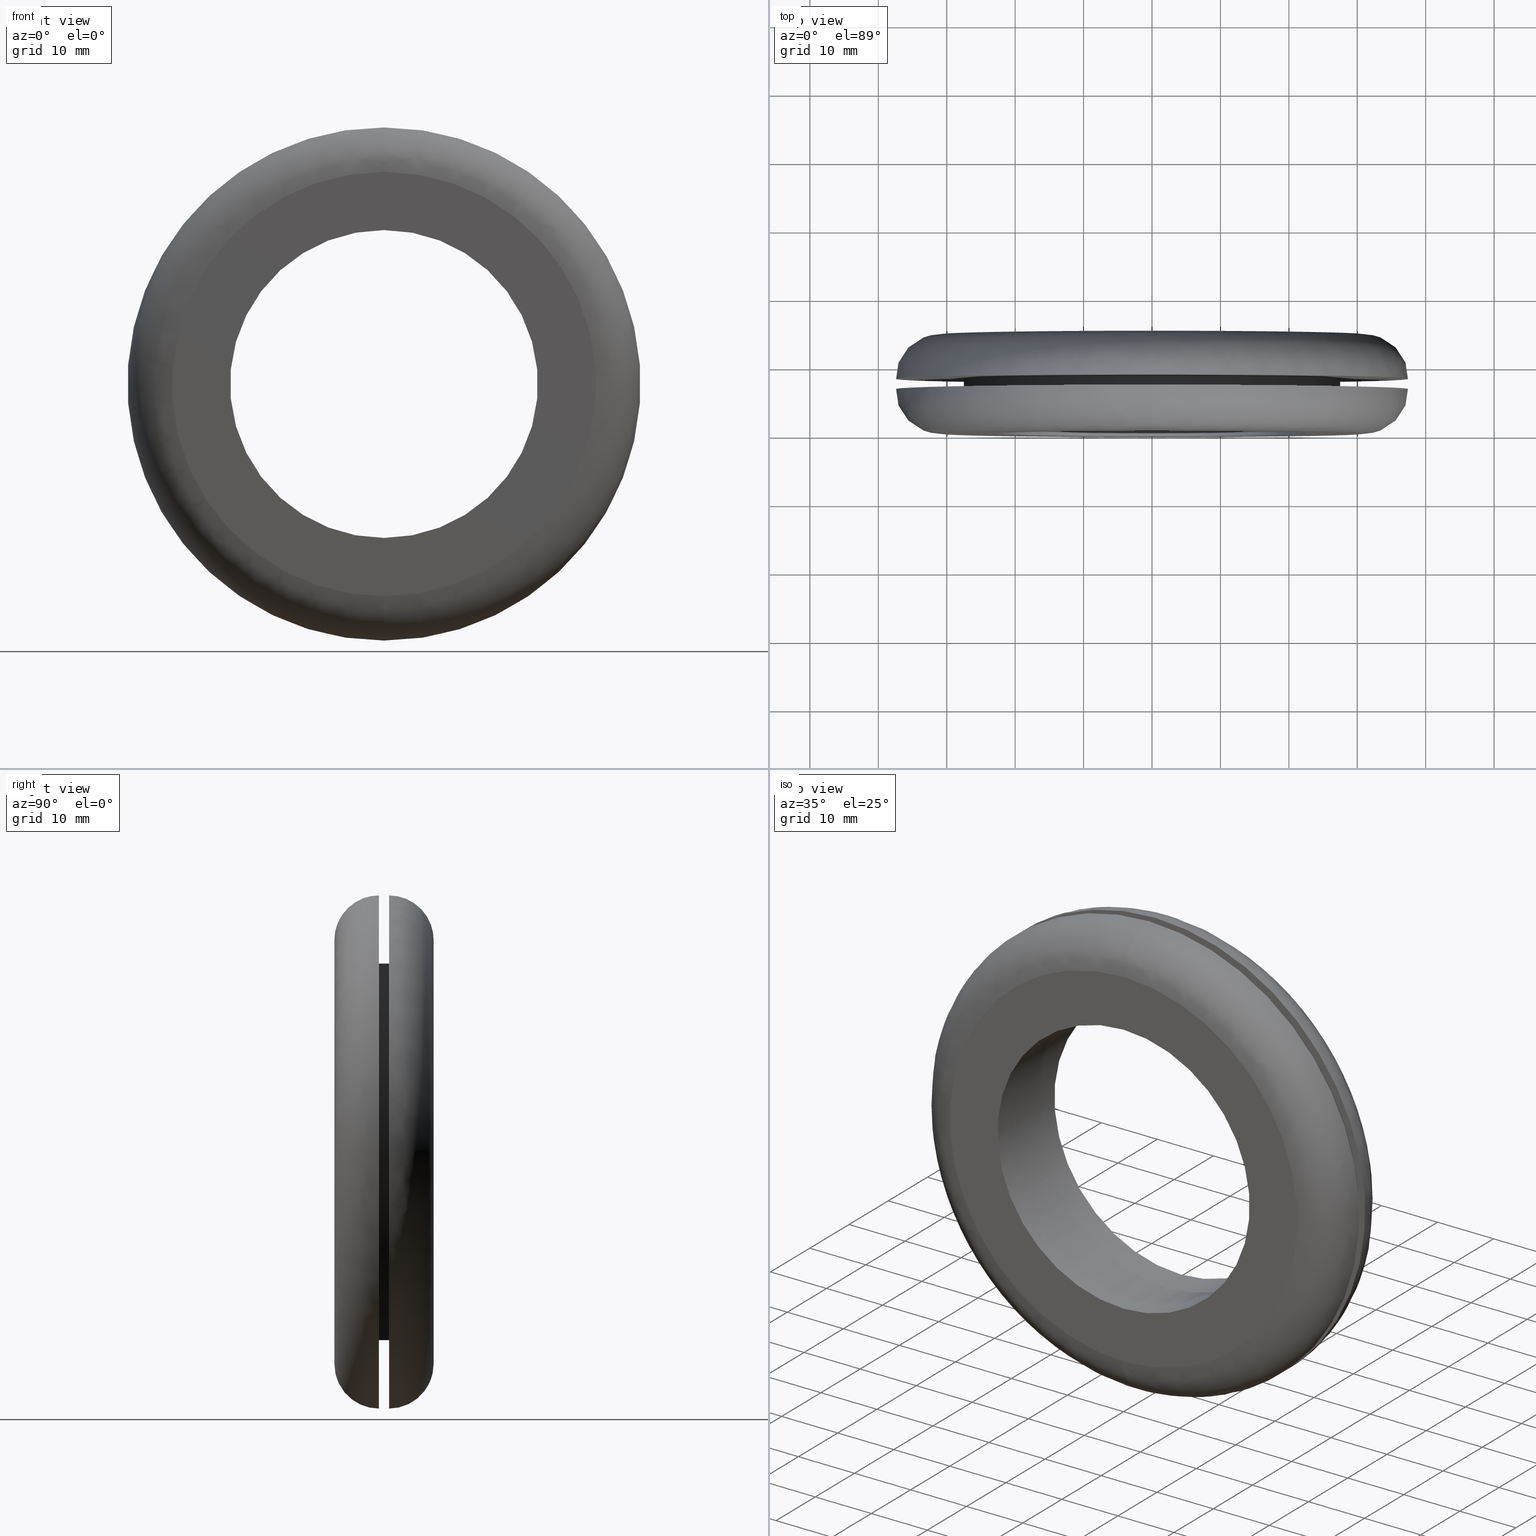
[diagram: canonical four-view strip — front | top / right | iso, engineering-drawing reading convention]
A machine part, canonical four-view strip (front | top / right | iso — engineering-drawing reading convention). The complete STEP part file that produces these views, byte-faithful:
ISO-10303-21;
HEADER;

FILE_DESCRIPTION( (''), '2;1');
FILE_NAME ('PC50.12492.TM_B_45_1_5_CRUL_6526.stp','2019-12-19T13:53:18',(''),(''),'spGate 15.6.1','','');

FILE_SCHEMA (('AUTOMOTIVE_DESIGN'));
ENDSEC;

DATA;
#10=(GEOMETRIC_REPRESENTATION_CONTEXT(3) GLOBAL_UNCERTAINTY_ASSIGNED_CONTEXT((#11)) GLOBAL_UNIT_ASSIGNED_CONTEXT((#12,#13,#14)) REPRESENTATION_CONTEXT('ID1','3D'));
#11=UNCERTAINTY_MEASURE_WITH_UNIT(LENGTH_MEASURE(0.01),#15,'DISTANCE_ACCURACY_VALUE','Maximum model space distance between geometric entities at asserted connectivities');
#12=(NAMED_UNIT(*) SI_UNIT($,.STERADIAN.) SOLID_ANGLE_UNIT());
#13=(CONVERSION_BASED_UNIT('DEGREE',#16) NAMED_UNIT(#17) PLANE_ANGLE_UNIT());
#14=(LENGTH_UNIT() NAMED_UNIT(*) SI_UNIT(.MILLI.,.METRE.));
#15=(LENGTH_UNIT() NAMED_UNIT(*) SI_UNIT(.MILLI.,.METRE.));
#16=PLANE_ANGLE_MEASURE_WITH_UNIT(PLANE_ANGLE_MEASURE(0.01745329252),#18);
#17=DIMENSIONAL_EXPONENTS(0.0,0.0,0.0,0.0,0.0,0.0,0.0);
#18=(NAMED_UNIT(*) PLANE_ANGLE_UNIT() SI_UNIT($,.RADIAN.));
#19=MANIFOLD_SOLID_BREP('TM_B_45_1_5',#31);
#20=ADVANCED_BREP_SHAPE_REPRESENTATION('',(#19),#10);
#21=APPLICATION_CONTEXT('');
#22=APPLICATION_PROTOCOL_DEFINITION('International Standard','automotive_design',1999,#21);
#23=PRODUCT_DEFINITION_CONTEXT('',#21,'design');
#24=PRODUCT_CONTEXT('',#21,'mechanical');
#25=PRODUCT('','','',(#24));
#26=PRODUCT_DEFINITION_FORMATION_WITH_SPECIFIED_SOURCE('','',#25,.NOT_KNOWN.);
#27=PRODUCT_RELATED_PRODUCT_CATEGORY('tool','tool',(#25));
#28=PRODUCT_DEFINITION('','',#26,#23);
#29=PRODUCT_DEFINITION_SHAPE('','',#28);
#30=SHAPE_DEFINITION_REPRESENTATION(#29,#20);
#31=CLOSED_SHELL('',(#40,#41,#42,#43,#44,#45,#46,#47,#48,#49,#50,#51));
#32=COLOUR_RGB('',0.00000000000E+000,0.00000000000E+000,0.00000000000E+000);
#33=FILL_AREA_STYLE_COLOUR('',#32);
#34=FILL_AREA_STYLE('',(#33));
#35=SURFACE_STYLE_FILL_AREA(#34);
#36=SURFACE_SIDE_STYLE('',(#35));
#37=SURFACE_STYLE_USAGE(.BOTH.,#36);
#38=PRESENTATION_STYLE_ASSIGNMENT((#37));
#39=STYLED_ITEM('',(#38),#19);
#40=ADVANCED_FACE('',(#53,#54),#52,.T.);
#41=ADVANCED_FACE('',(#64,#65),#63,.T.);
#42=ADVANCED_FACE('',(#75,#76),#74,.T.);
#43=ADVANCED_FACE('',(#86,#87),#85,.F.);
#44=ADVANCED_FACE('',(#97),#96,.T.);
#45=ADVANCED_FACE('',(#107),#106,.T.);
#46=ADVANCED_FACE('',(#117),#116,.F.);
#47=ADVANCED_FACE('',(#127),#126,.F.);
#48=ADVANCED_FACE('',(#137),#136,.T.);
#49=ADVANCED_FACE('',(#147),#146,.T.);
#50=ADVANCED_FACE('',(#157),#156,.T.);
#51=ADVANCED_FACE('',(#167),#166,.T.);
#52=PLANE('',#179);
#53=FACE_OUTER_BOUND('',#180,.T.);
#54=FACE_BOUND('',#181,.T.);
#55=COLOUR_RGB('',1.00000000000E+000,1.00000000000E+000,1.00000000000E+000);
#56=FILL_AREA_STYLE_COLOUR('',#55);
#57=FILL_AREA_STYLE('',(#56));
#58=SURFACE_STYLE_FILL_AREA(#57);
#59=SURFACE_SIDE_STYLE('',(#58));
#60=SURFACE_STYLE_USAGE(.BOTH.,#59);
#61=PRESENTATION_STYLE_ASSIGNMENT((#60));
#62=STYLED_ITEM('',(#61),#40);
#63=PLANE('',#185);
#64=FACE_OUTER_BOUND('',#186,.T.);
#65=FACE_BOUND('',#187,.T.);
#66=COLOUR_RGB('',1.00000000000E+000,1.00000000000E+000,1.00000000000E+000);
#67=FILL_AREA_STYLE_COLOUR('',#66);
#68=FILL_AREA_STYLE('',(#67));
#69=SURFACE_STYLE_FILL_AREA(#68);
#70=SURFACE_SIDE_STYLE('',(#69));
#71=SURFACE_STYLE_USAGE(.BOTH.,#70);
#72=PRESENTATION_STYLE_ASSIGNMENT((#71));
#73=STYLED_ITEM('',(#72),#41);
#74=PLANE('',#191);
#75=FACE_OUTER_BOUND('',#192,.T.);
#76=FACE_BOUND('',#193,.T.);
#77=COLOUR_RGB('',1.00000000000E+000,1.00000000000E+000,1.00000000000E+000);
#78=FILL_AREA_STYLE_COLOUR('',#77);
#79=FILL_AREA_STYLE('',(#78));
#80=SURFACE_STYLE_FILL_AREA(#79);
#81=SURFACE_SIDE_STYLE('',(#80));
#82=SURFACE_STYLE_USAGE(.BOTH.,#81);
#83=PRESENTATION_STYLE_ASSIGNMENT((#82));
#84=STYLED_ITEM('',(#83),#42);
#85=PLANE('',#197);
#86=FACE_OUTER_BOUND('',#198,.T.);
#87=FACE_BOUND('',#199,.T.);
#88=COLOUR_RGB('',1.00000000000E+000,1.00000000000E+000,1.00000000000E+000);
#89=FILL_AREA_STYLE_COLOUR('',#88);
#90=FILL_AREA_STYLE('',(#89));
#91=SURFACE_STYLE_FILL_AREA(#90);
#92=SURFACE_SIDE_STYLE('',(#91));
#93=SURFACE_STYLE_USAGE(.BOTH.,#92);
#94=PRESENTATION_STYLE_ASSIGNMENT((#93));
#95=STYLED_ITEM('',(#94),#43);
#96=CYLINDRICAL_SURFACE('',#203,2.75000000000E+001);
#97=FACE_OUTER_BOUND('',#204,.T.);
#98=COLOUR_RGB('',1.00000000000E+000,1.00000000000E+000,1.00000000000E+000);
#99=FILL_AREA_STYLE_COLOUR('',#98);
#100=FILL_AREA_STYLE('',(#99));
#101=SURFACE_STYLE_FILL_AREA(#100);
#102=SURFACE_SIDE_STYLE('',(#101));
#103=SURFACE_STYLE_USAGE(.BOTH.,#102);
#104=PRESENTATION_STYLE_ASSIGNMENT((#103));
#105=STYLED_ITEM('',(#104),#44);
#106=CYLINDRICAL_SURFACE('',#208,2.75000000000E+001);
#107=FACE_OUTER_BOUND('',#209,.T.);
#108=COLOUR_RGB('',1.00000000000E+000,1.00000000000E+000,1.00000000000E+000);
#109=FILL_AREA_STYLE_COLOUR('',#108);
#110=FILL_AREA_STYLE('',(#109));
#111=SURFACE_STYLE_FILL_AREA(#110);
#112=SURFACE_SIDE_STYLE('',(#111));
#113=SURFACE_STYLE_USAGE(.BOTH.,#112);
#114=PRESENTATION_STYLE_ASSIGNMENT((#113));
#115=STYLED_ITEM('',(#114),#45);
#116=CYLINDRICAL_SURFACE('',#213,2.25000000000E+001);
#117=FACE_OUTER_BOUND('',#214,.T.);
#118=COLOUR_RGB('',1.00000000000E+000,1.00000000000E+000,1.00000000000E+000);
#119=FILL_AREA_STYLE_COLOUR('',#118);
#120=FILL_AREA_STYLE('',(#119));
#121=SURFACE_STYLE_FILL_AREA(#120);
#122=SURFACE_SIDE_STYLE('',(#121));
#123=SURFACE_STYLE_USAGE(.BOTH.,#122);
#124=PRESENTATION_STYLE_ASSIGNMENT((#123));
#125=STYLED_ITEM('',(#124),#46);
#126=CYLINDRICAL_SURFACE('',#218,2.25000000000E+001);
#127=FACE_OUTER_BOUND('',#219,.T.);
#128=COLOUR_RGB('',1.00000000000E+000,1.00000000000E+000,1.00000000000E+000);
#129=FILL_AREA_STYLE_COLOUR('',#128);
#130=FILL_AREA_STYLE('',(#129));
#131=SURFACE_STYLE_FILL_AREA(#130);
#132=SURFACE_SIDE_STYLE('',(#131));
#133=SURFACE_STYLE_USAGE(.BOTH.,#132);
#134=PRESENTATION_STYLE_ASSIGNMENT((#133));
#135=STYLED_ITEM('',(#134),#47);
#136=( BOUNDED_SURFACE() B_SPLINE_SURFACE( 2,2,((#220,#221,#222,#223,#224),(#225,#226,#227,#228,#229),(#230,#231,#232,#233,#234),(#235,#236,#237,#238,#239),(#240,#241,#242,#243,#244)), .UNSPECIFIED.,.F.,.F.,.F.) B_SPLINE_SURFACE_WITH_KNOTS((3,2,3),(3,2,3),(0.00000000000E+000,5.00000000000E-001,1.00000000000E+000),(0.00000000000E+000,5.00000000000E-001,1.00000000000E+000), .UNSPECIFIED. ) GEOMETRIC_REPRESENTATION_ITEM() RATIONAL_B_SPLINE_SURFACE(((1.00000000000E+000,7.07106781186E-001,1.00000000000E+000,7.07106781186E-001,1.00000000000E+000),(7.07106781187E-001,5.00000000000E-001,7.07106781187E-001,5.00000000000E-001,7.07106781187E-001),(1.00000000000E+000,7.07106781186E-001,1.00000000000E+000,7.07106781186E-001,1.00000000000E+000),(7.07106781187E-001,5.00000000000E-001,7.07106781187E-001,5.00000000000E-001,7.07106781187E-001),(1.00000000000E+000,7.07106781186E-001,1.00000000000E+000,7.07106781186E-001,1.00000000000E+000))) REPRESENTATION_ITEM('') SURFACE() );
#137=FACE_OUTER_BOUND('',#245,.T.);
#138=COLOUR_RGB('',1.00000000000E+000,1.00000000000E+000,1.00000000000E+000);
#139=FILL_AREA_STYLE_COLOUR('',#138);
#140=FILL_AREA_STYLE('',(#139));
#141=SURFACE_STYLE_FILL_AREA(#140);
#142=SURFACE_SIDE_STYLE('',(#141));
#143=SURFACE_STYLE_USAGE(.BOTH.,#142);
#144=PRESENTATION_STYLE_ASSIGNMENT((#143));
#145=STYLED_ITEM('',(#144),#48);
#146=( BOUNDED_SURFACE() B_SPLINE_SURFACE( 2,2,((#246,#247,#248,#249,#250),(#251,#252,#253,#254,#255),(#256,#257,#258,#259,#260),(#261,#262,#263,#264,#265),(#266,#267,#268,#269,#270)), .UNSPECIFIED.,.F.,.F.,.F.) B_SPLINE_SURFACE_WITH_KNOTS((3,2,3),(3,2,3),(0.00000000000E+000,5.00000000000E-001,1.00000000000E+000),(0.00000000000E+000,5.00000000000E-001,1.00000000000E+000), .UNSPECIFIED. ) GEOMETRIC_REPRESENTATION_ITEM() RATIONAL_B_SPLINE_SURFACE(((1.00000000000E+000,7.07106781186E-001,1.00000000000E+000,7.07106781186E-001,1.00000000000E+000),(7.07106781187E-001,5.00000000000E-001,7.07106781187E-001,5.00000000000E-001,7.07106781187E-001),(1.00000000000E+000,7.07106781186E-001,1.00000000000E+000,7.07106781186E-001,1.00000000000E+000),(7.07106781187E-001,5.00000000000E-001,7.07106781187E-001,5.00000000000E-001,7.07106781187E-001),(1.00000000000E+000,7.07106781186E-001,1.00000000000E+000,7.07106781186E-001,1.00000000000E+000))) REPRESENTATION_ITEM('') SURFACE() );
#147=FACE_OUTER_BOUND('',#271,.T.);
#148=COLOUR_RGB('',1.00000000000E+000,1.00000000000E+000,1.00000000000E+000);
#149=FILL_AREA_STYLE_COLOUR('',#148);
#150=FILL_AREA_STYLE('',(#149));
#151=SURFACE_STYLE_FILL_AREA(#150);
#152=SURFACE_SIDE_STYLE('',(#151));
#153=SURFACE_STYLE_USAGE(.BOTH.,#152);
#154=PRESENTATION_STYLE_ASSIGNMENT((#153));
#155=STYLED_ITEM('',(#154),#49);
#156=( BOUNDED_SURFACE() B_SPLINE_SURFACE( 2,2,((#272,#273,#274,#275,#276),(#277,#278,#279,#280,#281),(#282,#283,#284,#285,#286),(#287,#288,#289,#290,#291),(#292,#293,#294,#295,#296)), .UNSPECIFIED.,.F.,.F.,.F.) B_SPLINE_SURFACE_WITH_KNOTS((3,2,3),(3,2,3),(0.00000000000E+000,5.00000000000E-001,1.00000000000E+000),(0.00000000000E+000,5.00000000000E-001,1.00000000000E+000), .UNSPECIFIED. ) GEOMETRIC_REPRESENTATION_ITEM() RATIONAL_B_SPLINE_SURFACE(((1.00000000000E+000,7.07106781186E-001,1.00000000000E+000,7.07106781186E-001,1.00000000000E+000),(7.07106781187E-001,5.00000000000E-001,7.07106781187E-001,5.00000000000E-001,7.07106781187E-001),(1.00000000000E+000,7.07106781186E-001,1.00000000000E+000,7.07106781186E-001,1.00000000000E+000),(7.07106781187E-001,5.00000000000E-001,7.07106781187E-001,5.00000000000E-001,7.07106781187E-001),(1.00000000000E+000,7.07106781186E-001,1.00000000000E+000,7.07106781186E-001,1.00000000000E+000))) REPRESENTATION_ITEM('') SURFACE() );
#157=FACE_OUTER_BOUND('',#297,.T.);
#158=COLOUR_RGB('',1.00000000000E+000,1.00000000000E+000,1.00000000000E+000);
#159=FILL_AREA_STYLE_COLOUR('',#158);
#160=FILL_AREA_STYLE('',(#159));
#161=SURFACE_STYLE_FILL_AREA(#160);
#162=SURFACE_SIDE_STYLE('',(#161));
#163=SURFACE_STYLE_USAGE(.BOTH.,#162);
#164=PRESENTATION_STYLE_ASSIGNMENT((#163));
#165=STYLED_ITEM('',(#164),#50);
#166=( BOUNDED_SURFACE() B_SPLINE_SURFACE( 2,2,((#298,#299,#300,#301,#302),(#303,#304,#305,#306,#307),(#308,#309,#310,#311,#312),(#313,#314,#315,#316,#317),(#318,#319,#320,#321,#322)), .UNSPECIFIED.,.F.,.F.,.F.) B_SPLINE_SURFACE_WITH_KNOTS((3,2,3),(3,2,3),(0.00000000000E+000,5.00000000000E-001,1.00000000000E+000),(0.00000000000E+000,5.00000000000E-001,1.00000000000E+000), .UNSPECIFIED. ) GEOMETRIC_REPRESENTATION_ITEM() RATIONAL_B_SPLINE_SURFACE(((1.00000000000E+000,7.07106781186E-001,1.00000000000E+000,7.07106781186E-001,1.00000000000E+000),(7.07106781187E-001,5.00000000000E-001,7.07106781187E-001,5.00000000000E-001,7.07106781187E-001),(1.00000000000E+000,7.07106781186E-001,1.00000000000E+000,7.07106781186E-001,1.00000000000E+000),(7.07106781187E-001,5.00000000000E-001,7.07106781187E-001,5.00000000000E-001,7.07106781187E-001),(1.00000000000E+000,7.07106781186E-001,1.00000000000E+000,7.07106781186E-001,1.00000000000E+000))) REPRESENTATION_ITEM('') SURFACE() );
#167=FACE_OUTER_BOUND('',#323,.T.);
#168=COLOUR_RGB('',1.00000000000E+000,1.00000000000E+000,1.00000000000E+000);
#169=FILL_AREA_STYLE_COLOUR('',#168);
#170=FILL_AREA_STYLE('',(#169));
#171=SURFACE_STYLE_FILL_AREA(#170);
#172=SURFACE_SIDE_STYLE('',(#171));
#173=SURFACE_STYLE_USAGE(.BOTH.,#172);
#174=PRESENTATION_STYLE_ASSIGNMENT((#173));
#175=STYLED_ITEM('',(#174),#51);
#176=CARTESIAN_POINT('',(-7.49519052838E+001,6.50000000000E+000,-4.75000000000E+001));
#177=DIRECTION('',(-0.00000000000E+000,1.00000000000E+000,0.00000000000E+000));
#178=DIRECTION('',(0.00000000000E+000,0.00000000000E+000,1.00000000000E+000));
#179=AXIS2_PLACEMENT_3D('',#176,#177,#178);
#180=EDGE_LOOP('',(#324,#325));
#181=EDGE_LOOP('',(#326,#327));
#182=CARTESIAN_POINT('',(-6.36935750346E+001,1.45000000000E+001,-4.03000000000E+001));
#183=DIRECTION('',(-0.00000000000E+000,1.00000000000E+000,0.00000000000E+000));
#184=DIRECTION('',(0.00000000000E+000,0.00000000000E+000,1.00000000000E+000));
#185=AXIS2_PLACEMENT_3D('',#182,#183,#184);
#186=EDGE_LOOP('',(#328,#329));
#187=EDGE_LOOP('',(#330,#331));
#188=CARTESIAN_POINT('',(-7.49519052838E+001,8.00000000000E+000,4.75000000000E+001));
#189=DIRECTION('',(0.00000000000E+000,-1.00000000000E+000,0.00000000000E+000));
#190=DIRECTION('',(0.00000000000E+000,0.00000000000E+000,-1.00000000000E+000));
#191=AXIS2_PLACEMENT_3D('',#188,#189,#190);
#192=EDGE_LOOP('',(#332,#333));
#193=EDGE_LOOP('',(#334,#335));
#194=CARTESIAN_POINT('',(-6.36935750346E+001,0.00000000000E+000,-4.03000000000E+001));
#195=DIRECTION('',(-0.00000000000E+000,1.00000000000E+000,0.00000000000E+000));
#196=DIRECTION('',(0.00000000000E+000,0.00000000000E+000,1.00000000000E+000));
#197=AXIS2_PLACEMENT_3D('',#194,#195,#196);
#198=EDGE_LOOP('',(#336,#337));
#199=EDGE_LOOP('',(#338,#339));
#200=CARTESIAN_POINT('',(0.00000000000E+000,7.25000000000E+000,0.00000000000E+000));
#201=DIRECTION('',(-0.00000000000E+000,1.00000000000E+000,0.00000000000E+000));
#202=DIRECTION('',(0.00000000000E+000,-0.00000000000E+000,1.00000000000E+000));
#203=AXIS2_PLACEMENT_3D('',#200,#201,#202);
#204=EDGE_LOOP('',(#340,#341,#342,#343));
#205=CARTESIAN_POINT('',(0.00000000000E+000,7.25000000000E+000,0.00000000000E+000));
#206=DIRECTION('',(-0.00000000000E+000,1.00000000000E+000,0.00000000000E+000));
#207=DIRECTION('',(0.00000000000E+000,-0.00000000000E+000,1.00000000000E+000));
#208=AXIS2_PLACEMENT_3D('',#205,#206,#207);
#209=EDGE_LOOP('',(#344,#345,#346,#347));
#210=CARTESIAN_POINT('',(0.00000000000E+000,7.24999999567E+000,0.00000000000E+000));
#211=DIRECTION('',(-0.00000000000E+000,-1.00000000000E+000,-0.00000000000E+000));
#212=DIRECTION('',(-1.22464679915E-016,-0.00000000000E+000,1.00000000000E+000));
#213=AXIS2_PLACEMENT_3D('',#210,#211,#212);
#214=EDGE_LOOP('',(#348,#349,#350,#351));
#215=CARTESIAN_POINT('',(0.00000000000E+000,7.24999999567E+000,0.00000000000E+000));
#216=DIRECTION('',(-0.00000000000E+000,-1.00000000000E+000,-0.00000000000E+000));
#217=DIRECTION('',(-1.22464679915E-016,-0.00000000000E+000,1.00000000000E+000));
#218=AXIS2_PLACEMENT_3D('',#215,#216,#217);
#219=EDGE_LOOP('',(#352,#353,#354,#355));
#220=CARTESIAN_POINT('',(2.35420255184E-013,6.50000000000E+000,2.45000000000E+001));
#221=CARTESIAN_POINT('',(5.11143345616E-014,1.36912062397E-012,2.45000000000E+001));
#222=CARTESIAN_POINT('',(7.95752948274E-014,-4.79616346638E-014,3.10000000000E+001));
#223=CARTESIAN_POINT('',(1.08036255093E-013,-1.46332617149E-012,3.75000000000E+001));
#224=CARTESIAN_POINT('',(2.92342175716E-013,6.50000000000E+000,3.75000000000E+001));
#225=CARTESIAN_POINT('',(2.45000000000E+001,6.50000000000E+000,2.45000000000E+001));
#226=CARTESIAN_POINT('',(2.45000000000E+001,6.74565099767E-013,2.45000000000E+001));
#227=CARTESIAN_POINT('',(3.10000000000E+001,-9.27213411527E-013,3.10000000000E+001));
#228=CARTESIAN_POINT('',(3.75000000000E+001,-2.52736391829E-012,3.75000000000E+001));
#229=CARTESIAN_POINT('',(3.75000000000E+001,6.50000000000E+000,3.75000000000E+001));
#230=CARTESIAN_POINT('',(2.45000000000E+001,6.50000000000E+000,-1.05775734827E-013));
#231=CARTESIAN_POINT('',(2.45000000000E+001,6.74511720251E-013,-1.05775734827E-013));
#232=CARTESIAN_POINT('',(3.10000000000E+001,-9.27258270167E-013,-1.33838684883E-013));
#233=CARTESIAN_POINT('',(3.75000000000E+001,-2.52722082150E-012,-1.61901634939E-013));
#234=CARTESIAN_POINT('',(3.75000000000E+001,6.50000000000E+000,-1.61901634939E-013));
#235=CARTESIAN_POINT('',(2.45000000000E+001,6.50000000000E+000,-2.45000000000E+001));
#236=CARTESIAN_POINT('',(2.45000000000E+001,6.74565099767E-013,-2.45000000000E+001));
#237=CARTESIAN_POINT('',(3.10000000000E+001,-9.27213411527E-013,-3.10000000000E+001));
#238=CARTESIAN_POINT('',(3.75000000000E+001,-2.52736391829E-012,-3.75000000000E+001));
#239=CARTESIAN_POINT('',(3.75000000000E+001,6.50000000000E+000,-3.75000000000E+001));
#240=CARTESIAN_POINT('',(2.38687855302E-014,6.50000000000E+000,-2.45000000000E+001));
#241=CARTESIAN_POINT('',(-1.60437135093E-013,1.36912062397E-012,-2.45000000000E+001));
#242=CARTESIAN_POINT('',(-1.88102074939E-013,-4.79616346638E-014,-3.10000000000E+001));
#243=CARTESIAN_POINT('',(-2.15767014786E-013,-1.46332617149E-012,-3.75000000000E+001));
#244=CARTESIAN_POINT('',(-3.14610941628E-014,6.50000000000E+000,-3.75000000000E+001));
#245=EDGE_LOOP('',(#356,#357,#358,#359));
#246=CARTESIAN_POINT('',(2.38687855302E-014,6.50000000000E+000,-2.45000000000E+001));
#247=CARTESIAN_POINT('',(-1.60437135093E-013,1.36912062397E-012,-2.45000000000E+001));
#248=CARTESIAN_POINT('',(-1.88102074939E-013,-4.79616346638E-014,-3.10000000000E+001));
#249=CARTESIAN_POINT('',(-2.15767014786E-013,-1.46332617149E-012,-3.75000000000E+001));
#250=CARTESIAN_POINT('',(-3.14610941628E-014,6.50000000000E+000,-3.75000000000E+001));
#251=CARTESIAN_POINT('',(-2.45000000000E+001,6.50000000000E+000,-2.45000000000E+001));
#252=CARTESIAN_POINT('',(-2.45000000000E+001,2.06367614818E-012,-2.45000000000E+001));
#253=CARTESIAN_POINT('',(-3.10000000000E+001,8.31290142199E-013,-3.10000000000E+001));
#254=CARTESIAN_POINT('',(-3.75000000000E+001,-3.99288424693E-013,-3.75000000000E+001));
#255=CARTESIAN_POINT('',(-3.75000000000E+001,6.50000000000E+000,-3.75000000000E+001));
#256=CARTESIAN_POINT('',(-2.45000000000E+001,6.50000000000E+000,1.02775350169E-013));
#257=CARTESIAN_POINT('',(-2.45000000000E+001,2.06372952769E-012,1.02775350169E-013));
#258=CARTESIAN_POINT('',(-3.10000000000E+001,8.31335000839E-013,1.30042279806E-013));
#259=CARTESIAN_POINT('',(-3.75000000000E+001,-3.99431521489E-013,1.57309209443E-013));
#260=CARTESIAN_POINT('',(-3.75000000000E+001,6.50000000000E+000,1.57309209443E-013));
#261=CARTESIAN_POINT('',(-2.45000000000E+001,6.50000000000E+000,2.45000000000E+001));
#262=CARTESIAN_POINT('',(-2.45000000000E+001,2.06367614818E-012,2.45000000000E+001));
#263=CARTESIAN_POINT('',(-3.10000000000E+001,8.31290142199E-013,3.10000000000E+001));
#264=CARTESIAN_POINT('',(-3.75000000000E+001,-3.99288424693E-013,3.75000000000E+001));
#265=CARTESIAN_POINT('',(-3.75000000000E+001,6.50000000000E+000,3.75000000000E+001));
#266=CARTESIAN_POINT('',(2.29419485869E-013,6.50000000000E+000,2.45000000000E+001));
#267=CARTESIAN_POINT('',(4.51135652458E-014,1.36912062397E-012,2.45000000000E+001));
#268=CARTESIAN_POINT('',(7.19824846727E-014,-4.79616346638E-014,3.10000000000E+001));
#269=CARTESIAN_POINT('',(9.88514040997E-014,-1.46332617149E-012,3.75000000000E+001));
#270=CARTESIAN_POINT('',(2.83157324723E-013,6.50000000000E+000,3.75000000000E+001));
#271=EDGE_LOOP('',(#360,#361,#362,#363));
#272=CARTESIAN_POINT('',(2.92604590447E-013,8.00000000000E+000,3.75000000000E+001));
#273=CARTESIAN_POINT('',(1.08130722020E-013,1.45000000000E+001,3.75000000000E+001));
#274=CARTESIAN_POINT('',(7.96448610858E-014,1.45000000000E+001,3.10000000000E+001));
#275=CARTESIAN_POINT('',(5.11590001521E-014,1.45000000000E+001,2.45000000000E+001));
#276=CARTESIAN_POINT('',(2.35632868579E-013,8.00000000000E+000,2.45000000000E+001));
#277=CARTESIAN_POINT('',(3.75000000000E+001,8.00000000000E+000,3.75000000000E+001));
#278=CARTESIAN_POINT('',(3.75000000000E+001,1.45000000000E+001,3.75000000000E+001));
#279=CARTESIAN_POINT('',(3.10000000000E+001,1.45000000000E+001,3.10000000000E+001));
#280=CARTESIAN_POINT('',(2.45000000000E+001,1.45000000000E+001,2.45000000000E+001));
#281=CARTESIAN_POINT('',(2.45000000000E+001,8.00000000000E+000,2.45000000000E+001));
#282=CARTESIAN_POINT('',(3.75000000000E+001,8.00000000000E+000,-1.62045292639E-013));
#283=CARTESIAN_POINT('',(3.75000000000E+001,1.45000000000E+001,-1.62045292639E-013));
#284=CARTESIAN_POINT('',(3.10000000000E+001,1.45000000000E+001,-1.33957441915E-013));
#285=CARTESIAN_POINT('',(2.45000000000E+001,1.45000000000E+001,-1.05869591191E-013));
#286=CARTESIAN_POINT('',(2.45000000000E+001,8.00000000000E+000,-1.05869591191E-013));
#287=CARTESIAN_POINT('',(3.75000000000E+001,8.00000000000E+000,-3.75000000000E+001));
#288=CARTESIAN_POINT('',(3.75000000000E+001,1.45000000000E+001,-3.75000000000E+001));
#289=CARTESIAN_POINT('',(3.10000000000E+001,1.45000000000E+001,-3.10000000000E+001));
#290=CARTESIAN_POINT('',(2.45000000000E+001,1.45000000000E+001,-2.45000000000E+001));
#291=CARTESIAN_POINT('',(2.45000000000E+001,8.00000000000E+000,-2.45000000000E+001));
#292=CARTESIAN_POINT('',(-3.14859948307E-014,8.00000000000E+000,-3.75000000000E+001));
#293=CARTESIAN_POINT('',(-2.15959863258E-013,1.45000000000E+001,-3.75000000000E+001));
#294=CARTESIAN_POINT('',(-1.88270022744E-013,1.45000000000E+001,-3.10000000000E+001));
#295=CARTESIAN_POINT('',(-1.60580182229E-013,1.45000000000E+001,-2.45000000000E+001));
#296=CARTESIAN_POINT('',(2.38936861981E-014,8.00000000000E+000,-2.45000000000E+001));
#297=EDGE_LOOP('',(#364,#365,#366,#367));
#298=CARTESIAN_POINT('',(-3.14859948307E-014,8.00000000000E+000,-3.75000000000E+001));
#299=CARTESIAN_POINT('',(-2.15959863258E-013,1.45000000000E+001,-3.75000000000E+001));
#300=CARTESIAN_POINT('',(-1.88270022744E-013,1.45000000000E+001,-3.10000000000E+001));
#301=CARTESIAN_POINT('',(-1.60580182229E-013,1.45000000000E+001,-2.45000000000E+001));
#302=CARTESIAN_POINT('',(2.38936861981E-014,8.00000000000E+000,-2.45000000000E+001));
#303=CARTESIAN_POINT('',(-3.75000000000E+001,8.00000000000E+000,-3.75000000000E+001));
#304=CARTESIAN_POINT('',(-3.75000000000E+001,1.45000000000E+001,-3.75000000000E+001));
#305=CARTESIAN_POINT('',(-3.10000000000E+001,1.45000000000E+001,-3.10000000000E+001));
#306=CARTESIAN_POINT('',(-2.45000000000E+001,1.45000000000E+001,-2.45000000000E+001));
#307=CARTESIAN_POINT('',(-2.45000000000E+001,8.00000000000E+000,-2.45000000000E+001));
#308=CARTESIAN_POINT('',(-3.75000000000E+001,8.00000000000E+000,1.57452867142E-013));
#309=CARTESIAN_POINT('',(-3.75000000000E+001,1.45000000000E+001,1.57452867142E-013));
#310=CARTESIAN_POINT('',(-3.10000000000E+001,1.45000000000E+001,1.30161036837E-013));
#311=CARTESIAN_POINT('',(-2.45000000000E+001,1.45000000000E+001,1.02869206533E-013));
#312=CARTESIAN_POINT('',(-2.45000000000E+001,8.00000000000E+000,1.02869206533E-013));
#313=CARTESIAN_POINT('',(-3.75000000000E+001,8.00000000000E+000,3.75000000000E+001));
#314=CARTESIAN_POINT('',(-3.75000000000E+001,1.45000000000E+001,3.75000000000E+001));
#315=CARTESIAN_POINT('',(-3.10000000000E+001,1.45000000000E+001,3.10000000000E+001));
#316=CARTESIAN_POINT('',(-2.45000000000E+001,1.45000000000E+001,2.45000000000E+001));
#317=CARTESIAN_POINT('',(-2.45000000000E+001,8.00000000000E+000,2.45000000000E+001));
#318=CARTESIAN_POINT('',(2.83419739453E-013,8.00000000000E+000,3.75000000000E+001));
#319=CARTESIAN_POINT('',(9.89458710260E-014,1.45000000000E+001,3.75000000000E+001));
#320=CARTESIAN_POINT('',(7.20520509311E-014,1.45000000000E+001,3.10000000000E+001));
#321=CARTESIAN_POINT('',(4.51582308363E-014,1.45000000000E+001,2.45000000000E+001));
#322=CARTESIAN_POINT('',(2.29632099264E-013,8.00000000000E+000,2.45000000000E+001));
#323=EDGE_LOOP('',(#368,#369,#370,#371));
#324=ORIENTED_EDGE('',*,*,#372,.T.);
#325=ORIENTED_EDGE('',*,*,#373,.T.);
#326=ORIENTED_EDGE('',*,*,#374,.F.);
#327=ORIENTED_EDGE('',*,*,#375,.F.);
#328=ORIENTED_EDGE('',*,*,#376,.T.);
#329=ORIENTED_EDGE('',*,*,#377,.T.);
#330=ORIENTED_EDGE('',*,*,#378,.T.);
#331=ORIENTED_EDGE('',*,*,#379,.T.);
#332=ORIENTED_EDGE('',*,*,#380,.F.);
#333=ORIENTED_EDGE('',*,*,#381,.F.);
#334=ORIENTED_EDGE('',*,*,#382,.T.);
#335=ORIENTED_EDGE('',*,*,#383,.T.);
#336=ORIENTED_EDGE('',*,*,#384,.T.);
#337=ORIENTED_EDGE('',*,*,#385,.T.);
#338=ORIENTED_EDGE('',*,*,#386,.F.);
#339=ORIENTED_EDGE('',*,*,#387,.F.);
#340=ORIENTED_EDGE('',*,*,#383,.F.);
#341=ORIENTED_EDGE('',*,*,#388,.F.);
#342=ORIENTED_EDGE('',*,*,#375,.T.);
#343=ORIENTED_EDGE('',*,*,#389,.T.);
#344=ORIENTED_EDGE('',*,*,#374,.T.);
#345=ORIENTED_EDGE('',*,*,#388,.T.);
#346=ORIENTED_EDGE('',*,*,#382,.F.);
#347=ORIENTED_EDGE('',*,*,#389,.F.);
#348=ORIENTED_EDGE('',*,*,#379,.F.);
#349=ORIENTED_EDGE('',*,*,#390,.T.);
#350=ORIENTED_EDGE('',*,*,#387,.T.);
#351=ORIENTED_EDGE('',*,*,#391,.F.);
#352=ORIENTED_EDGE('',*,*,#386,.T.);
#353=ORIENTED_EDGE('',*,*,#390,.F.);
#354=ORIENTED_EDGE('',*,*,#378,.F.);
#355=ORIENTED_EDGE('',*,*,#391,.T.);
#356=ORIENTED_EDGE('',*,*,#373,.F.);
#357=ORIENTED_EDGE('',*,*,#392,.F.);
#358=ORIENTED_EDGE('',*,*,#384,.F.);
#359=ORIENTED_EDGE('',*,*,#393,.T.);
#360=ORIENTED_EDGE('',*,*,#385,.F.);
#361=ORIENTED_EDGE('',*,*,#392,.T.);
#362=ORIENTED_EDGE('',*,*,#372,.F.);
#363=ORIENTED_EDGE('',*,*,#393,.F.);
#364=ORIENTED_EDGE('',*,*,#377,.F.);
#365=ORIENTED_EDGE('',*,*,#394,.F.);
#366=ORIENTED_EDGE('',*,*,#381,.T.);
#367=ORIENTED_EDGE('',*,*,#395,.T.);
#368=ORIENTED_EDGE('',*,*,#380,.T.);
#369=ORIENTED_EDGE('',*,*,#394,.T.);
#370=ORIENTED_EDGE('',*,*,#376,.F.);
#371=ORIENTED_EDGE('',*,*,#395,.F.);
#372=EDGE_CURVE('',#396,#397,#398,.T.);
#373=EDGE_CURVE('',#397,#396,#404,.T.);
#374=EDGE_CURVE('',#410,#411,#412,.T.);
#375=EDGE_CURVE('',#411,#410,#418,.T.);
#376=EDGE_CURVE('',#424,#425,#426,.T.);
#377=EDGE_CURVE('',#425,#424,#432,.T.);
#378=EDGE_CURVE('',#438,#439,#440,.T.);
#379=EDGE_CURVE('',#439,#438,#446,.T.);
#380=EDGE_CURVE('',#452,#453,#454,.T.);
#381=EDGE_CURVE('',#453,#452,#460,.T.);
#382=EDGE_CURVE('',#466,#467,#468,.T.);
#383=EDGE_CURVE('',#467,#466,#474,.T.);
#384=EDGE_CURVE('',#480,#481,#482,.T.);
#385=EDGE_CURVE('',#481,#480,#488,.T.);
#386=EDGE_CURVE('',#494,#495,#496,.T.);
#387=EDGE_CURVE('',#495,#494,#502,.T.);
#388=EDGE_CURVE('',#411,#467,#508,.T.);
#389=EDGE_CURVE('',#410,#466,#514,.T.);
#390=EDGE_CURVE('',#439,#495,#520,.T.);
#391=EDGE_CURVE('',#438,#494,#526,.T.);
#392=EDGE_CURVE('',#481,#397,#532,.T.);
#393=EDGE_CURVE('',#480,#396,#538,.T.);
#394=EDGE_CURVE('',#453,#425,#544,.T.);
#395=EDGE_CURVE('',#452,#424,#550,.T.);
#396=VERTEX_POINT('',#556);
#397=VERTEX_POINT('',#557);
#398=CIRCLE('',#561,3.75000000000E+001);
#399=COLOUR_RGB('',1.00000000000E+000,1.00000000000E+000,1.00000000000E+000);
#400=DRAUGHTING_PRE_DEFINED_CURVE_FONT('continuous');
#401=CURVE_STYLE( '',#400, POSITIVE_LENGTH_MEASURE(1.00000000000E-006),#399);
#402=PRESENTATION_STYLE_ASSIGNMENT((#401));
#403=STYLED_ITEM('',(#402),#372);
#404=CIRCLE('',#565,3.75000000000E+001);
#405=COLOUR_RGB('',1.00000000000E+000,1.00000000000E+000,1.00000000000E+000);
#406=DRAUGHTING_PRE_DEFINED_CURVE_FONT('continuous');
#407=CURVE_STYLE( '',#406, POSITIVE_LENGTH_MEASURE(1.00000000000E-006),#405);
#408=PRESENTATION_STYLE_ASSIGNMENT((#407));
#409=STYLED_ITEM('',(#408),#373);
#410=VERTEX_POINT('',#566);
#411=VERTEX_POINT('',#567);
#412=CIRCLE('',#571,2.75000000000E+001);
#413=COLOUR_RGB('',1.00000000000E+000,1.00000000000E+000,1.00000000000E+000);
#414=DRAUGHTING_PRE_DEFINED_CURVE_FONT('continuous');
#415=CURVE_STYLE( '',#414, POSITIVE_LENGTH_MEASURE(1.00000000000E-006),#413);
#416=PRESENTATION_STYLE_ASSIGNMENT((#415));
#417=STYLED_ITEM('',(#416),#374);
#418=CIRCLE('',#575,2.75000000000E+001);
#419=COLOUR_RGB('',1.00000000000E+000,1.00000000000E+000,1.00000000000E+000);
#420=DRAUGHTING_PRE_DEFINED_CURVE_FONT('continuous');
#421=CURVE_STYLE( '',#420, POSITIVE_LENGTH_MEASURE(1.00000000000E-006),#419);
#422=PRESENTATION_STYLE_ASSIGNMENT((#421));
#423=STYLED_ITEM('',(#422),#375);
#424=VERTEX_POINT('',#576);
#425=VERTEX_POINT('',#577);
#426=CIRCLE('',#581,3.10000000000E+001);
#427=COLOUR_RGB('',1.00000000000E+000,1.00000000000E+000,1.00000000000E+000);
#428=DRAUGHTING_PRE_DEFINED_CURVE_FONT('continuous');
#429=CURVE_STYLE( '',#428, POSITIVE_LENGTH_MEASURE(1.00000000000E-006),#427);
#430=PRESENTATION_STYLE_ASSIGNMENT((#429));
#431=STYLED_ITEM('',(#430),#376);
#432=CIRCLE('',#585,3.10000000000E+001);
#433=COLOUR_RGB('',1.00000000000E+000,1.00000000000E+000,1.00000000000E+000);
#434=DRAUGHTING_PRE_DEFINED_CURVE_FONT('continuous');
#435=CURVE_STYLE( '',#434, POSITIVE_LENGTH_MEASURE(1.00000000000E-006),#433);
#436=PRESENTATION_STYLE_ASSIGNMENT((#435));
#437=STYLED_ITEM('',(#436),#377);
#438=VERTEX_POINT('',#586);
#439=VERTEX_POINT('',#587);
#440=CIRCLE('',#591,2.25000000000E+001);
#441=COLOUR_RGB('',1.00000000000E+000,1.00000000000E+000,1.00000000000E+000);
#442=DRAUGHTING_PRE_DEFINED_CURVE_FONT('continuous');
#443=CURVE_STYLE( '',#442, POSITIVE_LENGTH_MEASURE(1.00000000000E-006),#441);
#444=PRESENTATION_STYLE_ASSIGNMENT((#443));
#445=STYLED_ITEM('',(#444),#378);
#446=CIRCLE('',#595,2.25000000000E+001);
#447=COLOUR_RGB('',1.00000000000E+000,1.00000000000E+000,1.00000000000E+000);
#448=DRAUGHTING_PRE_DEFINED_CURVE_FONT('continuous');
#449=CURVE_STYLE( '',#448, POSITIVE_LENGTH_MEASURE(1.00000000000E-006),#447);
#450=PRESENTATION_STYLE_ASSIGNMENT((#449));
#451=STYLED_ITEM('',(#450),#379);
#452=VERTEX_POINT('',#596);
#453=VERTEX_POINT('',#597);
#454=CIRCLE('',#601,3.75000000000E+001);
#455=COLOUR_RGB('',1.00000000000E+000,1.00000000000E+000,1.00000000000E+000);
#456=DRAUGHTING_PRE_DEFINED_CURVE_FONT('continuous');
#457=CURVE_STYLE( '',#456, POSITIVE_LENGTH_MEASURE(1.00000000000E-006),#455);
#458=PRESENTATION_STYLE_ASSIGNMENT((#457));
#459=STYLED_ITEM('',(#458),#380);
#460=CIRCLE('',#605,3.75000000000E+001);
#461=COLOUR_RGB('',1.00000000000E+000,1.00000000000E+000,1.00000000000E+000);
#462=DRAUGHTING_PRE_DEFINED_CURVE_FONT('continuous');
#463=CURVE_STYLE( '',#462, POSITIVE_LENGTH_MEASURE(1.00000000000E-006),#461);
#464=PRESENTATION_STYLE_ASSIGNMENT((#463));
#465=STYLED_ITEM('',(#464),#381);
#466=VERTEX_POINT('',#606);
#467=VERTEX_POINT('',#607);
#468=CIRCLE('',#611,2.75000000000E+001);
#469=COLOUR_RGB('',1.00000000000E+000,1.00000000000E+000,1.00000000000E+000);
#470=DRAUGHTING_PRE_DEFINED_CURVE_FONT('continuous');
#471=CURVE_STYLE( '',#470, POSITIVE_LENGTH_MEASURE(1.00000000000E-006),#469);
#472=PRESENTATION_STYLE_ASSIGNMENT((#471));
#473=STYLED_ITEM('',(#472),#382);
#474=CIRCLE('',#615,2.75000000000E+001);
#475=COLOUR_RGB('',1.00000000000E+000,1.00000000000E+000,1.00000000000E+000);
#476=DRAUGHTING_PRE_DEFINED_CURVE_FONT('continuous');
#477=CURVE_STYLE( '',#476, POSITIVE_LENGTH_MEASURE(1.00000000000E-006),#475);
#478=PRESENTATION_STYLE_ASSIGNMENT((#477));
#479=STYLED_ITEM('',(#478),#383);
#480=VERTEX_POINT('',#616);
#481=VERTEX_POINT('',#617);
#482=CIRCLE('',#621,3.10000000000E+001);
#483=COLOUR_RGB('',1.00000000000E+000,1.00000000000E+000,1.00000000000E+000);
#484=DRAUGHTING_PRE_DEFINED_CURVE_FONT('continuous');
#485=CURVE_STYLE( '',#484, POSITIVE_LENGTH_MEASURE(1.00000000000E-006),#483);
#486=PRESENTATION_STYLE_ASSIGNMENT((#485));
#487=STYLED_ITEM('',(#486),#384);
#488=CIRCLE('',#625,3.10000000000E+001);
#489=COLOUR_RGB('',1.00000000000E+000,1.00000000000E+000,1.00000000000E+000);
#490=DRAUGHTING_PRE_DEFINED_CURVE_FONT('continuous');
#491=CURVE_STYLE( '',#490, POSITIVE_LENGTH_MEASURE(1.00000000000E-006),#489);
#492=PRESENTATION_STYLE_ASSIGNMENT((#491));
#493=STYLED_ITEM('',(#492),#385);
#494=VERTEX_POINT('',#626);
#495=VERTEX_POINT('',#627);
#496=CIRCLE('',#631,2.25000000000E+001);
#497=COLOUR_RGB('',1.00000000000E+000,1.00000000000E+000,1.00000000000E+000);
#498=DRAUGHTING_PRE_DEFINED_CURVE_FONT('continuous');
#499=CURVE_STYLE( '',#498, POSITIVE_LENGTH_MEASURE(1.00000000000E-006),#497);
#500=PRESENTATION_STYLE_ASSIGNMENT((#499));
#501=STYLED_ITEM('',(#500),#386);
#502=CIRCLE('',#635,2.25000000000E+001);
#503=COLOUR_RGB('',1.00000000000E+000,1.00000000000E+000,1.00000000000E+000);
#504=DRAUGHTING_PRE_DEFINED_CURVE_FONT('continuous');
#505=CURVE_STYLE( '',#504, POSITIVE_LENGTH_MEASURE(1.00000000000E-006),#503);
#506=PRESENTATION_STYLE_ASSIGNMENT((#505));
#507=STYLED_ITEM('',(#506),#387);
#508=(BOUNDED_CURVE() B_SPLINE_CURVE(1,(#636,#637),.UNSPECIFIED.,.F.,.F.) B_SPLINE_CURVE_WITH_KNOTS((2,2),(8.33333134656E-002,9.16666653270E-001),.UNSPECIFIED.) CURVE() GEOMETRIC_REPRESENTATION_ITEM() RATIONAL_B_SPLINE_CURVE((1.00000000000E+000,1.00000000000E+000)) REPRESENTATION_ITEM('') );
#509=COLOUR_RGB('',1.00000000000E+000,1.00000000000E+000,1.00000000000E+000);
#510=DRAUGHTING_PRE_DEFINED_CURVE_FONT('continuous');
#511=CURVE_STYLE( '',#510, POSITIVE_LENGTH_MEASURE(1.00000000000E-006),#509);
#512=PRESENTATION_STYLE_ASSIGNMENT((#511));
#513=STYLED_ITEM('',(#512),#388);
#514=(BOUNDED_CURVE() B_SPLINE_CURVE(1,(#638,#639),.UNSPECIFIED.,.F.,.F.) B_SPLINE_CURVE_WITH_KNOTS((2,2),(8.33333333333E-002,9.16666666667E-001),.UNSPECIFIED.) CURVE() GEOMETRIC_REPRESENTATION_ITEM() RATIONAL_B_SPLINE_CURVE((7.50000000000E-001,7.50000000000E-001)) REPRESENTATION_ITEM('') );
#515=COLOUR_RGB('',1.00000000000E+000,1.00000000000E+000,1.00000000000E+000);
#516=DRAUGHTING_PRE_DEFINED_CURVE_FONT('continuous');
#517=CURVE_STYLE( '',#516, POSITIVE_LENGTH_MEASURE(1.00000000000E-006),#515);
#518=PRESENTATION_STYLE_ASSIGNMENT((#517));
#519=STYLED_ITEM('',(#518),#389);
#520=(BOUNDED_CURVE() B_SPLINE_CURVE(1,(#640,#641),.UNSPECIFIED.,.F.,.F.) B_SPLINE_CURVE_WITH_KNOTS((2,2),(8.33333328360E-002,9.16666666871E-001),.UNSPECIFIED.) CURVE() GEOMETRIC_REPRESENTATION_ITEM() RATIONAL_B_SPLINE_CURVE((1.00000000000E+000,1.00000000000E+000)) REPRESENTATION_ITEM('') );
#521=COLOUR_RGB('',1.00000000000E+000,1.00000000000E+000,1.00000000000E+000);
#522=DRAUGHTING_PRE_DEFINED_CURVE_FONT('continuous');
#523=CURVE_STYLE( '',#522, POSITIVE_LENGTH_MEASURE(1.00000000000E-006),#521);
#524=PRESENTATION_STYLE_ASSIGNMENT((#523));
#525=STYLED_ITEM('',(#524),#390);
#526=(BOUNDED_CURVE() B_SPLINE_CURVE(1,(#642,#643),.UNSPECIFIED.,.F.,.F.) B_SPLINE_CURVE_WITH_KNOTS((2,2),(8.33333333333E-002,9.16666666667E-001),.UNSPECIFIED.) CURVE() GEOMETRIC_REPRESENTATION_ITEM() RATIONAL_B_SPLINE_CURVE((7.50000000000E-001,7.50000000000E-001)) REPRESENTATION_ITEM('') );
#527=COLOUR_RGB('',1.00000000000E+000,1.00000000000E+000,1.00000000000E+000);
#528=DRAUGHTING_PRE_DEFINED_CURVE_FONT('continuous');
#529=CURVE_STYLE( '',#528, POSITIVE_LENGTH_MEASURE(1.00000000000E-006),#527);
#530=PRESENTATION_STYLE_ASSIGNMENT((#529));
#531=STYLED_ITEM('',(#530),#391);
#532=(BOUNDED_CURVE() B_SPLINE_CURVE(2,(#644,#645,#646),.UNSPECIFIED.,.F.,.F.) B_SPLINE_CURVE_WITH_KNOTS((3,3),(5.00000000000E-001,1.00000000000E+000),.UNSPECIFIED.) CURVE() GEOMETRIC_REPRESENTATION_ITEM() RATIONAL_B_SPLINE_CURVE((1.00000000000E+000,7.07106781186E-001,1.00000000000E+000)) REPRESENTATION_ITEM('') );
#533=COLOUR_RGB('',1.00000000000E+000,1.00000000000E+000,1.00000000000E+000);
#534=DRAUGHTING_PRE_DEFINED_CURVE_FONT('continuous');
#535=CURVE_STYLE( '',#534, POSITIVE_LENGTH_MEASURE(1.00000000000E-006),#533);
#536=PRESENTATION_STYLE_ASSIGNMENT((#535));
#537=STYLED_ITEM('',(#536),#392);
#538=(BOUNDED_CURVE() B_SPLINE_CURVE(3,(#647,#648,#649,#650,#651),.UNSPECIFIED.,.F.,.F.) B_SPLINE_CURVE_WITH_KNOTS((4,1,4),(4.99999994865E-001,7.49999997043E-001,1.00000000000E+000),.UNSPECIFIED.) CURVE() GEOMETRIC_REPRESENTATION_ITEM() RATIONAL_B_SPLINE_CURVE((1.00000000000E+000,1.00000000000E+000,1.00000000000E+000,1.00000000000E+000,1.00000000000E+000)) REPRESENTATION_ITEM('') );
#539=COLOUR_RGB('',1.00000000000E+000,1.00000000000E+000,1.00000000000E+000);
#540=DRAUGHTING_PRE_DEFINED_CURVE_FONT('continuous');
#541=CURVE_STYLE( '',#540, POSITIVE_LENGTH_MEASURE(1.00000000000E-006),#539);
#542=PRESENTATION_STYLE_ASSIGNMENT((#541));
#543=STYLED_ITEM('',(#542),#393);
#544=(BOUNDED_CURVE() B_SPLINE_CURVE(2,(#652,#653,#654),.UNSPECIFIED.,.F.,.F.) B_SPLINE_CURVE_WITH_KNOTS((3,3),(0.00000000000E+000,5.00000000000E-001),.UNSPECIFIED.) CURVE() GEOMETRIC_REPRESENTATION_ITEM() RATIONAL_B_SPLINE_CURVE((1.00000000000E+000,7.07106781186E-001,1.00000000000E+000)) REPRESENTATION_ITEM('') );
#545=COLOUR_RGB('',1.00000000000E+000,1.00000000000E+000,1.00000000000E+000);
#546=DRAUGHTING_PRE_DEFINED_CURVE_FONT('continuous');
#547=CURVE_STYLE( '',#546, POSITIVE_LENGTH_MEASURE(1.00000000000E-006),#545);
#548=PRESENTATION_STYLE_ASSIGNMENT((#547));
#549=STYLED_ITEM('',(#548),#394);
#550=(BOUNDED_CURVE() B_SPLINE_CURVE(3,(#655,#656,#657,#658,#659),.UNSPECIFIED.,.F.,.F.) B_SPLINE_CURVE_WITH_KNOTS((4,1,4),(0.00000000000E+000,2.50000001822E-001,5.00000003164E-001),.UNSPECIFIED.) CURVE() GEOMETRIC_REPRESENTATION_ITEM() RATIONAL_B_SPLINE_CURVE((1.00000000000E+000,1.00000000000E+000,1.00000000000E+000,1.00000000000E+000,1.00000000000E+000)) REPRESENTATION_ITEM('') );
#551=COLOUR_RGB('',1.00000000000E+000,1.00000000000E+000,1.00000000000E+000);
#552=DRAUGHTING_PRE_DEFINED_CURVE_FONT('continuous');
#553=CURVE_STYLE( '',#552, POSITIVE_LENGTH_MEASURE(1.00000000000E-006),#551);
#554=PRESENTATION_STYLE_ASSIGNMENT((#553));
#555=STYLED_ITEM('',(#554),#395);
#556=CARTESIAN_POINT('',(4.59227382683E-015,6.50000000000E+000,-3.75000000000E+001));
#557=CARTESIAN_POINT('',(2.36847578587E-015,6.50000000000E+000,3.75000000000E+001));
#558=CARTESIAN_POINT('',(0.00000000000E+000,6.50000000000E+000,0.00000000000E+000));
#559=DIRECTION('',(0.00000000000E+000,1.00000000000E+000,-0.00000000000E+000));
#560=DIRECTION('',(-0.00000000000E+000,-0.00000000000E+000,-1.00000000000E+000));
#561=AXIS2_PLACEMENT_3D('',#558,#559,#560);
#562=CARTESIAN_POINT('',(0.00000000000E+000,6.50000000000E+000,0.00000000000E+000));
#563=DIRECTION('',(0.00000000000E+000,1.00000000000E+000,-0.00000000000E+000));
#564=DIRECTION('',(-0.00000000000E+000,-0.00000000000E+000,-1.00000000000E+000));
#565=AXIS2_PLACEMENT_3D('',#562,#563,#564);
#566=CARTESIAN_POINT('',(0.00000000000E+000,6.50000000000E+000,-2.75000000000E+001));
#567=CARTESIAN_POINT('',(-4.55190536594E-015,6.50000000000E+000,2.75000000000E+001));
#568=CARTESIAN_POINT('',(0.00000000000E+000,6.50000000000E+000,0.00000000000E+000));
#569=DIRECTION('',(0.00000000000E+000,1.00000000000E+000,0.00000000000E+000));
#570=DIRECTION('',(-4.30631961065E-017,-0.00000000000E+000,1.00000000000E+000));
#571=AXIS2_PLACEMENT_3D('',#568,#569,#570);
#572=CARTESIAN_POINT('',(0.00000000000E+000,6.50000000000E+000,0.00000000000E+000));
#573=DIRECTION('',(0.00000000000E+000,1.00000000000E+000,0.00000000000E+000));
#574=DIRECTION('',(-4.30631961065E-017,-0.00000000000E+000,1.00000000000E+000));
#575=AXIS2_PLACEMENT_3D('',#572,#573,#574);
#576=CARTESIAN_POINT('',(3.79627969685E-015,1.45000000000E+001,-3.10000000000E+001));
#577=CARTESIAN_POINT('',(7.46069872548E-014,1.45000000000E+001,3.10000000000E+001));
#578=CARTESIAN_POINT('',(0.00000000000E+000,1.45000000000E+001,0.00000000000E+000));
#579=DIRECTION('',(0.00000000000E+000,1.00000000000E+000,-0.00000000000E+000));
#580=DIRECTION('',(-0.00000000000E+000,-0.00000000000E+000,-1.00000000000E+000));
#581=AXIS2_PLACEMENT_3D('',#578,#579,#580);
#582=CARTESIAN_POINT('',(0.00000000000E+000,1.45000000000E+001,0.00000000000E+000));
#583=DIRECTION('',(0.00000000000E+000,1.00000000000E+000,-0.00000000000E+000));
#584=DIRECTION('',(-0.00000000000E+000,-0.00000000000E+000,-1.00000000000E+000));
#585=AXIS2_PLACEMENT_3D('',#582,#583,#584);
#586=CARTESIAN_POINT('',(-2.75536429610E-015,1.45000000000E+001,-2.25000000000E+001));
#587=CARTESIAN_POINT('',(0.00000000000E+000,1.45000000000E+001,2.25000000000E+001));
#588=CARTESIAN_POINT('',(0.00000000000E+000,1.45000000000E+001,0.00000000000E+000));
#589=DIRECTION('',(0.00000000000E+000,-1.00000000000E+000,0.00000000000E+000));
#590=DIRECTION('',(-0.00000000000E+000,-0.00000000000E+000,-1.00000000000E+000));
#591=AXIS2_PLACEMENT_3D('',#588,#589,#590);
#592=CARTESIAN_POINT('',(0.00000000000E+000,1.45000000000E+001,0.00000000000E+000));
#593=DIRECTION('',(0.00000000000E+000,-1.00000000000E+000,0.00000000000E+000));
#594=DIRECTION('',(-0.00000000000E+000,-0.00000000000E+000,-1.00000000000E+000));
#595=AXIS2_PLACEMENT_3D('',#592,#593,#594);
#596=CARTESIAN_POINT('',(0.00000000000E+000,8.00000000000E+000,-3.75000000000E+001));
#597=CARTESIAN_POINT('',(-6.96074961270E-015,8.00000000000E+000,3.75000000000E+001));
#598=CARTESIAN_POINT('',(0.00000000000E+000,8.00000000000E+000,0.00000000000E+000));
#599=DIRECTION('',(0.00000000000E+000,1.00000000000E+000,0.00000000000E+000));
#600=DIRECTION('',(-6.31593542899E-017,-0.00000000000E+000,1.00000000000E+000));
#601=AXIS2_PLACEMENT_3D('',#598,#599,#600);
#602=CARTESIAN_POINT('',(0.00000000000E+000,8.00000000000E+000,0.00000000000E+000));
#603=DIRECTION('',(0.00000000000E+000,1.00000000000E+000,0.00000000000E+000));
#604=DIRECTION('',(-6.31593542899E-017,-0.00000000000E+000,1.00000000000E+000));
#605=AXIS2_PLACEMENT_3D('',#602,#603,#604);
#606=CARTESIAN_POINT('',(3.36766747301E-015,8.00000000000E+000,-2.75000000000E+001));
#607=CARTESIAN_POINT('',(1.18423789293E-015,8.00000000000E+000,2.75000000000E+001));
#608=CARTESIAN_POINT('',(0.00000000000E+000,8.00000000000E+000,0.00000000000E+000));
#609=DIRECTION('',(0.00000000000E+000,1.00000000000E+000,-0.00000000000E+000));
#610=DIRECTION('',(-0.00000000000E+000,-0.00000000000E+000,-1.00000000000E+000));
#611=AXIS2_PLACEMENT_3D('',#608,#609,#610);
#612=CARTESIAN_POINT('',(0.00000000000E+000,8.00000000000E+000,0.00000000000E+000));
#613=DIRECTION('',(0.00000000000E+000,1.00000000000E+000,-0.00000000000E+000));
#614=DIRECTION('',(-0.00000000000E+000,-0.00000000000E+000,-1.00000000000E+000));
#615=AXIS2_PLACEMENT_3D('',#612,#613,#614);
#616=CARTESIAN_POINT('',(-3.79627969685E-015,0.00000000000E+000,-3.10000000000E+001));
#617=CARTESIAN_POINT('',(-1.18423789293E-015,0.00000000000E+000,3.10000000000E+001));
#618=CARTESIAN_POINT('',(0.00000000000E+000,0.00000000000E+000,0.00000000000E+000));
#619=DIRECTION('',(0.00000000000E+000,-1.00000000000E+000,0.00000000000E+000));
#620=DIRECTION('',(-0.00000000000E+000,-0.00000000000E+000,-1.00000000000E+000));
#621=AXIS2_PLACEMENT_3D('',#618,#619,#620);
#622=CARTESIAN_POINT('',(0.00000000000E+000,0.00000000000E+000,0.00000000000E+000));
#623=DIRECTION('',(0.00000000000E+000,-1.00000000000E+000,0.00000000000E+000));
#624=DIRECTION('',(-0.00000000000E+000,-0.00000000000E+000,-1.00000000000E+000));
#625=AXIS2_PLACEMENT_3D('',#622,#623,#624);
#626=CARTESIAN_POINT('',(2.36847578587E-015,0.00000000000E+000,-2.25000000000E+001));
#627=CARTESIAN_POINT('',(3.86888510230E-016,0.00000000000E+000,2.25000000000E+001));
#628=CARTESIAN_POINT('',(0.00000000000E+000,0.00000000000E+000,0.00000000000E+000));
#629=DIRECTION('',(0.00000000000E+000,-1.00000000000E+000,0.00000000000E+000));
#630=DIRECTION('',(-1.05265590483E-016,-0.00000000000E+000,1.00000000000E+000));
#631=AXIS2_PLACEMENT_3D('',#628,#629,#630);
#632=CARTESIAN_POINT('',(0.00000000000E+000,0.00000000000E+000,0.00000000000E+000));
#633=DIRECTION('',(0.00000000000E+000,-1.00000000000E+000,0.00000000000E+000));
#634=DIRECTION('',(-1.05265590483E-016,-0.00000000000E+000,1.00000000000E+000));
#635=AXIS2_PLACEMENT_3D('',#632,#633,#634);
#636=CARTESIAN_POINT('',(0.00000000000E+000,6.49999996424E+000,2.75000000000E+001));
#637=CARTESIAN_POINT('',(0.00000000000E+000,7.99999997589E+000,2.75000000000E+001));
#638=CARTESIAN_POINT('',(0.00000000000E+000,6.50000000000E+000,-2.75000000000E+001));
#639=CARTESIAN_POINT('',(0.00000000000E+000,8.00000000000E+000,-2.75000000000E+001));
#640=CARTESIAN_POINT('',(-2.75545529809E-015,1.45000000087E+001,2.25000000000E+001));
#641=CARTESIAN_POINT('',(-2.75545529809E-015,-3.54882212505E-009,2.25000000000E+001));
#642=CARTESIAN_POINT('',(2.36847578587E-015,1.45000000000E+001,-2.25000000000E+001));
#643=CARTESIAN_POINT('',(2.36847578587E-015,-4.44089209850E-016,-2.25000000000E+001));
#644=CARTESIAN_POINT('',(7.95752948274E-014,-4.79616346638E-014,3.10000000000E+001));
#645=CARTESIAN_POINT('',(1.08036255093E-013,-1.46332617149E-012,3.75000000000E+001));
#646=CARTESIAN_POINT('',(2.92342175716E-013,6.50000000000E+000,3.75000000000E+001));
#647=CARTESIAN_POINT('',(-1.93030776141E-013,-4.72760261811E-014,-3.09999999056E+001));
#648=CARTESIAN_POINT('',(-2.00707431886E-013,-1.44564100224E-002,-3.26864277764E+001));
#649=CARTESIAN_POINT('',(-1.75828641591E-013,1.40805391706E+000,-3.60919460036E+001));
#650=CARTESIAN_POINT('',(-8.72363661241E-014,4.81357212368E+000,-3.75144563858E+001));
#651=CARTESIAN_POINT('',(-4.02640883597E-014,6.50000000000E+000,-3.75000000000E+001));
#652=CARTESIAN_POINT('',(2.92604590447E-013,8.00000000000E+000,3.75000000000E+001));
#653=CARTESIAN_POINT('',(1.08130722020E-013,1.45000000000E+001,3.75000000000E+001));
#654=CARTESIAN_POINT('',(7.96448610858E-014,1.45000000000E+001,3.10000000000E+001));
#655=CARTESIAN_POINT('',(-4.02640883597E-014,8.00000000000E+000,-3.75000000000E+001));
#656=CARTESIAN_POINT('',(-8.72363659307E-014,9.68642786941E+000,-3.75144563855E+001));
#657=CARTESIAN_POINT('',(-1.75828641115E-013,1.30919460640E+001,-3.60919460152E+001));
#658=CARTESIAN_POINT('',(-2.00707431756E-013,1.45144564005E+001,-3.26864278079E+001));
#659=CARTESIAN_POINT('',(-1.93030776297E-013,1.45000000000E+001,-3.09999999418E+001));
#660=MECHANICAL_DESIGN_GEOMETRIC_PRESENTATION_REPRESENTATION( '', (#39,#62,#73,#84,#95,#105,#115,#125,#135,#145,#155,#165,#175,#403,#409,#417,#423,#431,#437,#445,#451,#459,#465,#473,#479,#487,#493,#501,#507,#513,#519,#525,#531,#537,#543,#549,#555),#10);
ENDSEC;
END-ISO-10303-21;
